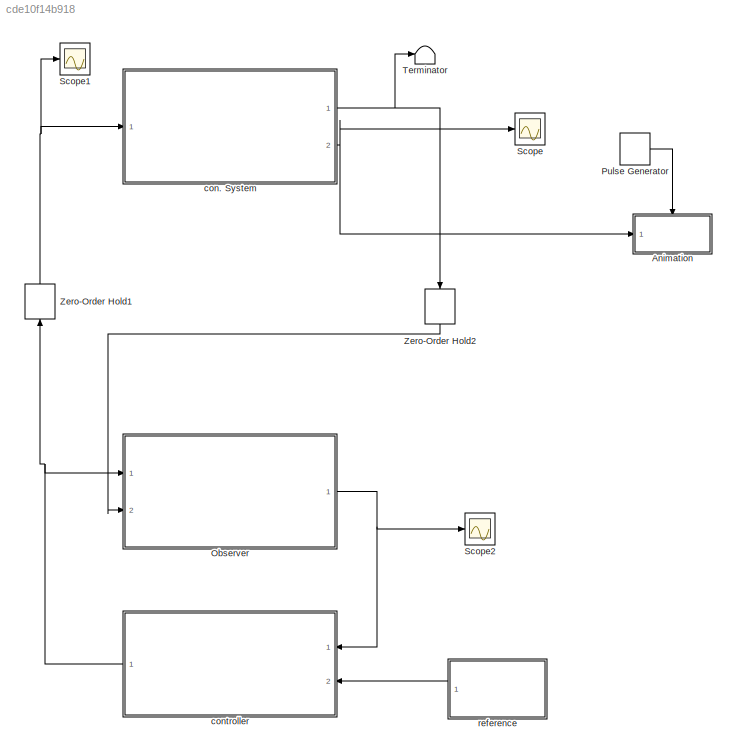
MODEL slx_cde10f14b918
KIND model
CONFIG AbsTol = auto
CONFIG EnableMultiTasking = off
CONFIG FixedStep = auto
CONFIG MaxStep = auto
CONFIG MinStep = auto
CONFIG RelTol = 1e-3
CONFIG SampleTimeConstraint = Unconstrained
CONFIG Solver = VariableStepAuto
CONFIG SolverName = VariableStepAuto
CONFIG StartTime = 0.0
CONFIG StopTime = 100
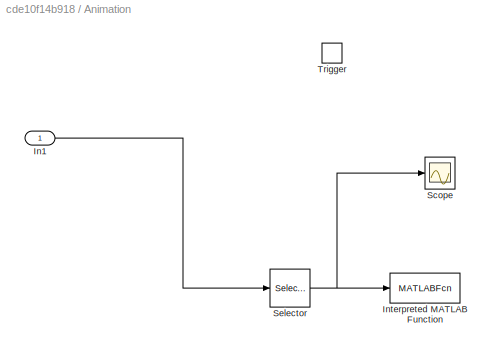
BLOCK [SubSystem] Animation
  Ports = [1, 0, 0, 1]
  RequestExecContextInheritance = off
BLOCK [Inport] Animation/In1
BLOCK [MATLABFcn] Animation/Interpreted MATLAB Function
  MATLABFcn = draw_cart
  OutputDimensions = 0
  Ports = [1]
BLOCK [Scope] Animation/Scope
  Floating = off
  NumInputPorts = 1
  Ports = [1]
  ScopeSpecificationString = Simulink.scopes.TimeScopeBlockCfg('CurrentConfiguration', extmgr.ConfigurationSet(extmgr.Configuration('Core','General UI',true),extmgr.Configuration('Core','Source UI',true),extmgr.Configuration('Sources','WiredSimulink',true,'DataLoggingVariableName','ScopeData1'),extmgr.Configuration('Visuals','Time Domain',true,'SerializedDisplays',{struct('MinYLimReal','-6.09388','MaxYLimReal','5.00504','YLab...<+1436ch>
BLOCK [Selector] Animation/Selector
  IndexOptions = Index vector (dialog)
  Indices = [1 2]
  InputPortWidth = 4
  OutputSizes = 1
  Ports = [1, 1]
BLOCK [TriggerPort] Animation/Trigger
  PortDimensions = 1
  Ports = []
  StatesWhenEnabling = held
  VariantControl = Variant
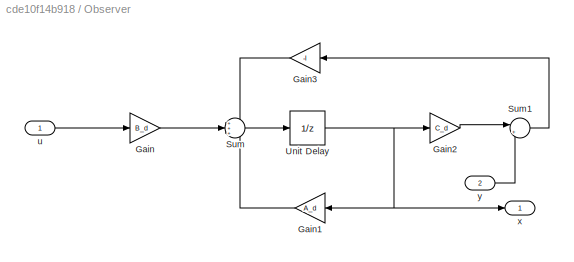
BLOCK [SubSystem] Observer
  Ports = [2, 1]
  RequestExecContextInheritance = off
BLOCK [Gain] Observer/Gain
  Gain = B_d
  Multiplication = Matrix(K*u)
BLOCK [Gain] Observer/Gain1
  Gain = A_d
  Multiplication = Matrix(K*u)
BLOCK [Gain] Observer/Gain2
  Gain = C_d
  Multiplication = Matrix(K*u)
BLOCK [Gain] Observer/Gain3
  Gain = -l
  Multiplication = Matrix(u*K)
BLOCK [Sum] Observer/Sum
  Inputs = +++
  Ports = [3, 1]
BLOCK [Sum] Observer/Sum1
  Inputs = |+-
  Ports = [2, 1]
BLOCK [UnitDelay] Observer/Unit Delay
  HasFrameUpgradeWarning = on
  SampleTime = -1
BLOCK [Inport] Observer/u
BLOCK [Outport] Observer/x
BLOCK [Inport] Observer/y
  Port = 2
BLOCK [DiscretePulseGenerator] Pulse Generator
  Period = .1
  Ports = [0, 1]
  PulseType = Time based
  PulseWidth = 50
BLOCK [Scope] Scope
  Floating = off
  NumInputPorts = 1
  Ports = [1]
  ScopeSpecificationString = Simulink.scopes.TimeScopeBlockCfg('CurrentConfiguration', extmgr.ConfigurationSet(extmgr.Configuration('Core','General UI',true),extmgr.Configuration('Core','Source UI',true),extmgr.Configuration('Sources','WiredSimulink',true),extmgr.Configuration('Visuals','Time Domain',true,'SerializedDisplays',{struct('MinYLimReal','-3.68948','MaxYLimReal','1.26415','YLabelReal','','MinYLimMag','0.00000','MaxY...<+1419ch>
BLOCK [Scope] Scope1
  Floating = off
  NumInputPorts = 1
  Ports = [1]
  ScopeSpecificationString = Simulink.scopes.TimeScopeBlockCfg('CurrentConfiguration', extmgr.ConfigurationSet(extmgr.Configuration('Core','General UI',true),extmgr.Configuration('Core','Source UI',true),extmgr.Configuration('Sources','WiredSimulink',true,'DataLoggingVariableName','ScopeData1'),extmgr.Configuration('Visuals','Time Domain',true,'SerializedDisplays',{struct('MinYLimReal','-2976.08972','MaxYLimReal','4832.98455'...<+1427ch>
BLOCK [Scope] Scope2
  Floating = off
  NumInputPorts = 1
  Ports = [1]
  ScopeSpecificationString = Simulink.scopes.TimeScopeBlockCfg('CurrentConfiguration', extmgr.ConfigurationSet(extmgr.Configuration('Core','General UI',true),extmgr.Configuration('Core','Source UI',true),extmgr.Configuration('Sources','WiredSimulink',true,'DataLoggingVariableName','ScopeData1'),extmgr.Configuration('Visuals','Time Domain',true,'SerializedDisplays',{struct('MinYLimReal','-3.47174','MaxYLimReal','2.38231','YLab...<+1454ch>
BLOCK [Terminator] Terminator
BLOCK [ZeroOrderHold] Zero-Order Hold1
  NameLocation = right
  SampleTime = Ts
BLOCK [ZeroOrderHold] Zero-Order Hold2
  NameLocation = left
  SampleTime = Ts
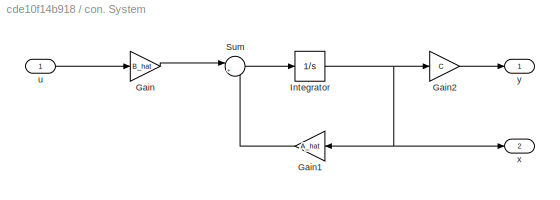
BLOCK [SubSystem] con. System
  Ports = [1, 2]
  RequestExecContextInheritance = off
BLOCK [Gain] con. System/Gain
  Gain = B_hat
  Multiplication = Matrix(K*u)
BLOCK [Gain] con. System/Gain1
  Gain = A_hat
  Multiplication = Matrix(K*u)
BLOCK [Gain] con. System/Gain2
  Gain = C
  Multiplication = Matrix(K*u)
BLOCK [Integrator] con. System/Integrator
  InitialCondition = x0
  Ports = [1, 1]
BLOCK [Sum] con. System/Sum
  Inputs = |++
  Ports = [2, 1]
BLOCK [Inport] con. System/u
BLOCK [Outport] con. System/x
  Port = 2
BLOCK [Outport] con. System/y
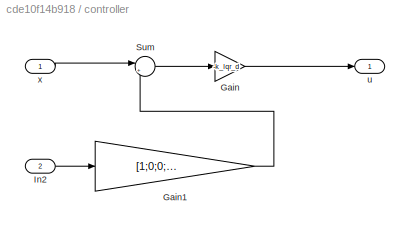
BLOCK [SubSystem] controller
  Ports = [2, 1]
  RequestExecContextInheritance = off
BLOCK [Gain] controller/Gain
  Gain = -k_lqr_d
  Multiplication = Matrix(K*u)
BLOCK [Gain] controller/Gain1
  Gain = [1;0;0;0]
  Multiplication = Matrix(K*u)
BLOCK [Inport] controller/In2
  Port = 2
BLOCK [Sum] controller/Sum
  Inputs = |+-
  Ports = [2, 1]
BLOCK [Outport] controller/u
BLOCK [Inport] controller/x
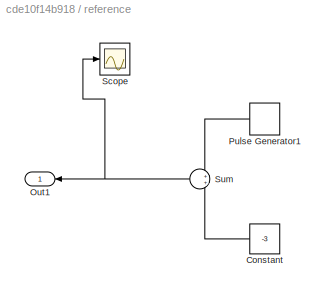
BLOCK [SubSystem] reference
  NameLocation = top
  Ports = [0, 1]
  RequestExecContextInheritance = off
BLOCK [Constant] reference/Constant
  Value = -3
BLOCK [Outport] reference/Out1
BLOCK [DiscretePulseGenerator] reference/Pulse Generator1
  Amplitude = 3
  NameLocation = top
  Period = 15
  Ports = [0, 1]
  PulseType = Time based
  PulseWidth = 50
BLOCK [Scope] reference/Scope
  Floating = off
  NumInputPorts = 1
  Ports = [1]
  ScopeSpecificationString = Simulink.scopes.TimeScopeBlockCfg('CurrentConfiguration', extmgr.ConfigurationSet(extmgr.Configuration('Core','General UI',true),extmgr.Configuration('Core','Source UI',true),extmgr.Configuration('Sources','WiredSimulink',true,'DataLoggingVariableName','ScopeData1'),extmgr.Configuration('Visuals','Time Domain',true,'SerializedDisplays',{struct('MinYLimReal','-3.375','MaxYLimReal','0.375','YLabelRe...<+1380ch>
BLOCK [Sum] reference/Sum
  NameLocation = top
  Ports = [2, 1]
LINE Animation/In1:1 -> Animation/Selector:1
NET Animation/Selector:1 -> Animation/Interpreted MATLAB Function:1, Animation/Scope:1
LINE Observer/Gain1:1 -> Observer/Sum:3
LINE Observer/Gain2:1 -> Observer/Sum1:1
LINE Observer/Gain3:1 -> Observer/Sum:1
LINE Observer/Gain:1 -> Observer/Sum:2
LINE Observer/Sum1:1 -> Observer/Gain3:1
LINE Observer/Sum:1 -> Observer/Unit Delay:1
NET Observer/Unit Delay:1 -> Observer/Gain1:1, Observer/Gain2:1, Observer/x:1
LINE Observer/u:1 -> Observer/Gain:1
LINE Observer/y:1 -> Observer/Sum1:2
NET Observer:1 -> Scope2:1, controller:1
LINE Pulse Generator:1 -> Animation:trigger
NET Zero-Order Hold1:1 -> Scope1:1, con. System:1
LINE Zero-Order Hold2:1 -> Observer:2
LINE con. System/Gain1:1 -> con. System/Sum:2
LINE con. System/Gain2:1 -> con. System/y:1
LINE con. System/Gain:1 -> con. System/Sum:1
NET con. System/Integrator:1 -> con. System/Gain1:1, con. System/Gain2:1, con. System/x:1
LINE con. System/Sum:1 -> con. System/Integrator:1
LINE con. System/u:1 -> con. System/Gain:1
NET con. System:1 -> Terminator:1, Zero-Order Hold2:1
NET con. System:2 -> Animation:1, Scope:1
LINE controller/Gain1:1 -> controller/Sum:2
LINE controller/Gain:1 -> controller/u:1
LINE controller/In2:1 -> controller/Gain1:1
LINE controller/Sum:1 -> controller/Gain:1
LINE controller/x:1 -> controller/Sum:1
NET controller:1 -> Observer:1, Zero-Order Hold1:1
LINE reference/Constant:1 -> reference/Sum:2
LINE reference/Pulse Generator1:1 -> reference/Sum:1
NET reference/Sum:1 -> reference/Out1:1, reference/Scope:1
LINE reference:1 -> controller:2
note: NET lines group one-source signal fan-out (src -> all destinations, sorted); 1:1 wires keep LINE
